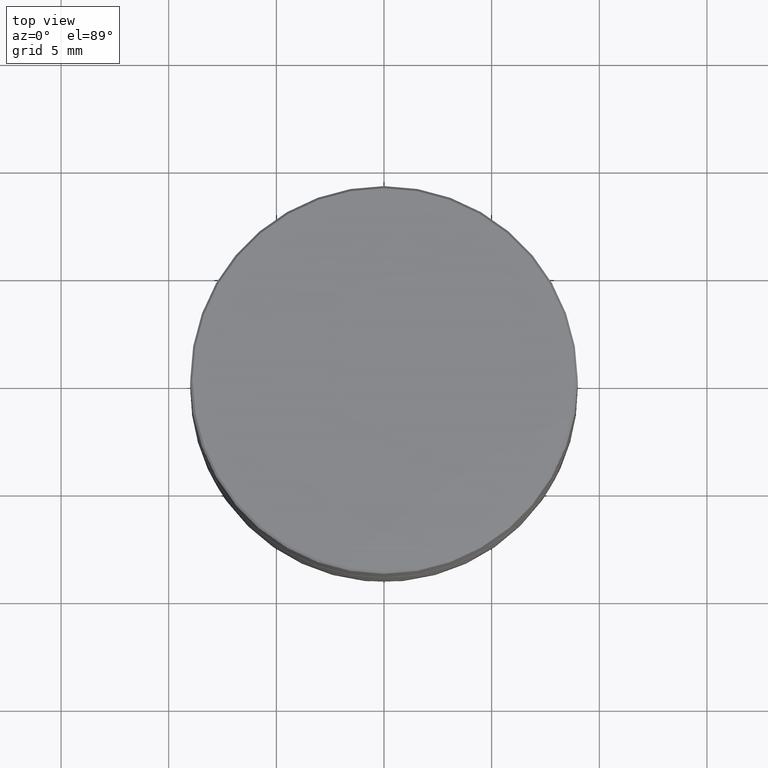
[diagram: clean part render]
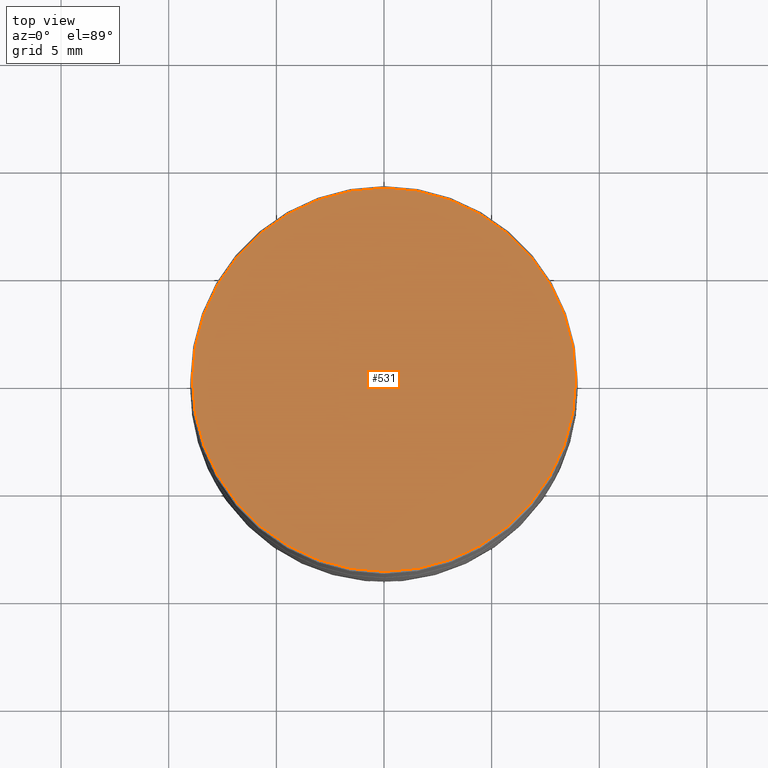
[diagram: same view with one face highlighted and labeled with its STEP entity id]
A machine part, top view. The second image highlights one B-rep face of the part: STEP entity #531.
In plain terms, the highlighted planar face has unit normal (0, -0, 1).
Its self-contained STEP definition (entity closure, byte-faithful):
#1 = EDGE_CURVE ( 'NONE', #851, #1543, #668, .T. ) ;
#59 = CARTESIAN_POINT ( 'NONE',  ( 0.000000000000000000, 0.000000000000000000, 0.000000000000000000 ) ) ;
#176 = DIRECTION ( 'NONE',  ( 1.000000000000000000, 0.000000000000000000, 0.000000000000000000 ) ) ;
#310 = AXIS2_PLACEMENT_3D ( 'NONE', #540, #316, #176 ) ;
#316 = DIRECTION ( 'NONE',  ( -0.000000000000000000, -0.000000000000000000, 1.000000000000000000 ) ) ;
#435 = PLANE ( 'NONE',  #777 ) ;
#531 = ADVANCED_FACE ( 'NONE', ( #1451 ), #435, .T. ) ;
#538 = DIRECTION ( 'NONE',  ( 1.000000000000000000, 0.000000000000000000, 0.000000000000000000 ) ) ;
#540 = CARTESIAN_POINT ( 'NONE',  ( 0.000000000000000000, 0.000000000000000000, 0.000000000000000000 ) ) ;
#555 = DIRECTION ( 'NONE',  ( -0.000000000000000000, -0.000000000000000000, 1.000000000000000000 ) ) ;
#664 = CARTESIAN_POINT ( 'NONE',  ( 0.000000000000000000, 0.000000000000000000, 0.000000000000000000 ) ) ;
#668 = CIRCLE ( 'NONE', #310, 8.900000000000009237 ) ;
#676 = EDGE_LOOP ( 'NONE', ( #759, #1050 ) ) ;
#693 = CIRCLE ( 'NONE', #1183, 8.900000000000009237 ) ;
#759 = ORIENTED_EDGE ( 'NONE', *, *, #1, .T. ) ;
#777 = AXIS2_PLACEMENT_3D ( 'NONE', #664, #1602, #538 ) ;
#834 = CARTESIAN_POINT ( 'NONE',  ( 8.900000000000009237, 1.096058885236881233E-15, 0.000000000000000000 ) ) ;
#851 = VERTEX_POINT ( 'NONE', #1188 ) ;
#853 = EDGE_CURVE ( 'NONE', #1543, #851, #693, .T. ) ;
#1050 = ORIENTED_EDGE ( 'NONE', *, *, #853, .T. ) ;
#1183 = AXIS2_PLACEMENT_3D ( 'NONE', #59, #555, #1416 ) ;
#1188 = CARTESIAN_POINT ( 'NONE',  ( -8.900000000000009237, 0.000000000000000000, 0.000000000000000000 ) ) ;
#1416 = DIRECTION ( 'NONE',  ( 1.000000000000000000, 0.000000000000000000, 0.000000000000000000 ) ) ;
#1451 = FACE_OUTER_BOUND ( 'NONE', #676, .T. ) ;
#1543 = VERTEX_POINT ( 'NONE', #834 ) ;
#1602 = DIRECTION ( 'NONE',  ( 0.000000000000000000, -0.000000000000000000, 1.000000000000000000 ) ) ;